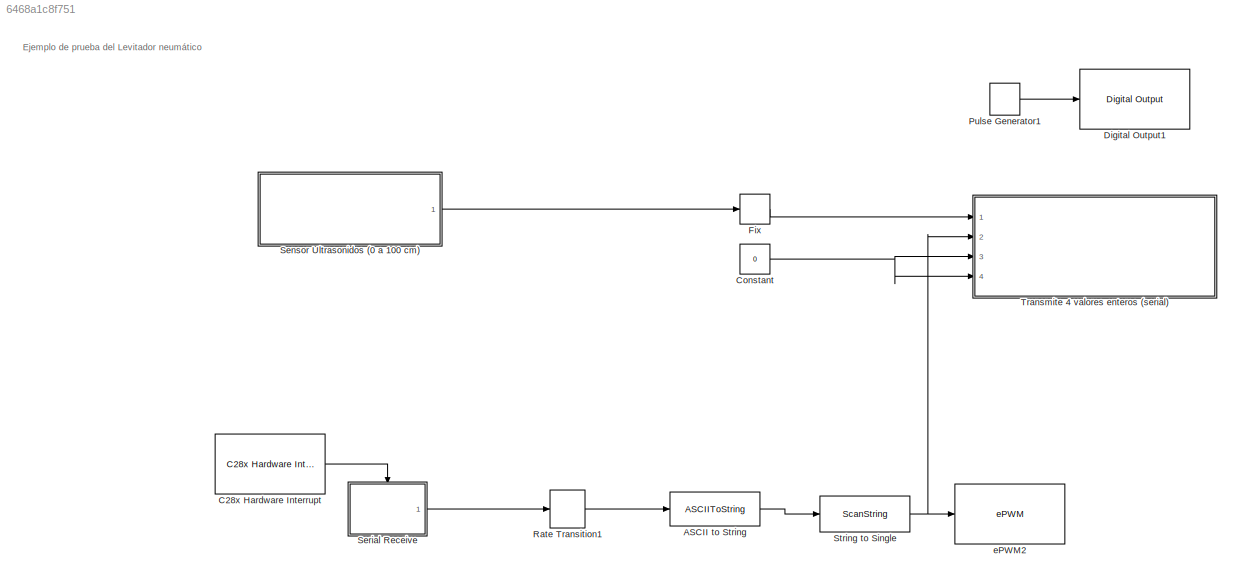
MODEL slx_6468a1c8f751
KIND model
CONFIG AbsTol = auto
CONFIG EnableMultiTasking = on
CONFIG FixedStep = 0.01
CONFIG MaxStep = auto
CONFIG MinStep = auto
CONFIG RelTol = 1e-3
CONFIG SampleTimeConstraint = Unconstrained
CONFIG Solver = FixedStepDiscrete
CONFIG SolverName = FixedStepDiscrete
CONFIG StartTime = 0.0
CONFIG StopTime = Inf
BLOCK [ASCIIToString] ASCII to String
BLOCK [Reference] C28x Hardware Interrupt  REF=c2000lib/Scheduling/C28x Hardware Interrupt
  Ports = [0, 1]
  SourceBlock = c2000lib/Scheduling/C28x Hardware Interrupt
  SourceProductBaseCode = TIC2000
  SourceProductName = Embedded Coder Support Package for Texas Instruments C2000 Processors
  SourceType = C28x Interrupt Block
BLOCK [Constant] Constant
  Value = 0
BLOCK [Reference] Digital Output1  REF=c2837xDlib/Digital Output
  Ports = [1]
  SourceBlock = c2837xDlib/Digital Output
  SourceProductBaseCode = TIC2000
  SourceProductName = Embedded Coder Support Package for Texas Instruments C2000 Processors
  SourceType = F2837x GPIO Digital Output
  UserDataPersistent = on
BLOCK [Rounding] Fix
  Operator = fix
BLOCK [DiscretePulseGenerator] Pulse Generator1
  Period = 6
  Ports = [0, 1]
  PulseWidth = 3
  SampleTime = -1
BLOCK [RateTransition] Rate Transition1
  AttributesFormatString = Ts = %<OutPortSampleTime>
  Integrity = off
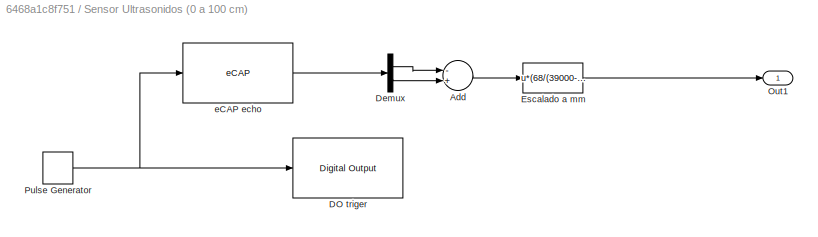
BLOCK [SubSystem] Sensor Ultrasonidos (0 a 100 cm) 
  Ports = [0, 1]
  RequestExecContextInheritance = off
BLOCK [Sum] Sensor Ultrasonidos (0 a 100 cm) /Add
  InputSameDT = off
  Inputs = -+
  OutDataTypeStr = double
  Ports = [2, 1]
  SaturateOnIntegerOverflow = off
BLOCK [Reference] Sensor Ultrasonidos (0 a 100 cm) /DO triger   REF=c2837xDlib/Digital Output
  Ports = [1]
  SourceBlock = c2837xDlib/Digital Output
  SourceProductBaseCode = TIC2000
  SourceProductName = Embedded Coder Support Package for Texas Instruments C2000 Processors
  SourceType = F2837x GPIO Digital Output
  UserDataPersistent = on
BLOCK [Demux] Sensor Ultrasonidos (0 a 100 cm) /Demux
  DisplayOption = bar
  Outputs = 2
  Ports = [1, 2]
BLOCK [Fcn] Sensor Ultrasonidos (0 a 100 cm) /Escalado a mm 
  Expr = u*(68/(39000-440000))+75
BLOCK [Outport] Sensor Ultrasonidos (0 a 100 cm) /Out1
  IconDisplay = Port number
BLOCK [DiscretePulseGenerator] Sensor Ultrasonidos (0 a 100 cm) /Pulse Generator
  Ports = [0, 1]
  SampleTime = -1
BLOCK [Reference] Sensor Ultrasonidos (0 a 100 cm) /eCAP echo   REF=c280xlib/eCAP
  Ports = [1, 1]
  SourceBlock = c280xlib/eCAP
  SourceProductBaseCode = TIC2000
  SourceProductName = Embedded Coder Support Package for Texas Instruments C2000 Processors
  SourceType = C28x eCAP
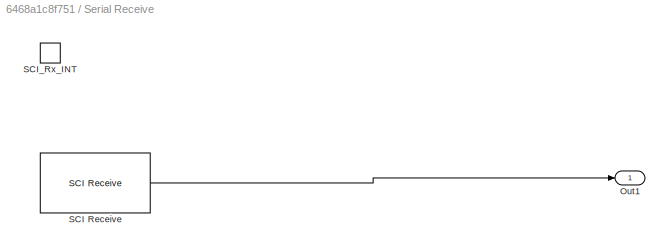
BLOCK [SubSystem] Serial Receive
  Ports = [0, 1, 0, 1]
  RequestExecContextInheritance = off
  SystemSampleTime = 1e-3
BLOCK [Outport] Serial Receive/Out1
  IconDisplay = Port number
  InitialOutput = [0]
  VectorParamsAs1DForOutWhenUnconnected = off
BLOCK [Reference] Serial Receive/SCI Receive  REF=c280xlib/SCI Receive
  Ports = [0, 1]
  SourceBlock = c280xlib/SCI Receive
  SourceProductBaseCode = TIC2000
  SourceProductName = Embedded Coder Support Package for Texas Instruments C2000 Processors
  SourceType = C28x SCI Receive
BLOCK [TriggerPort] Serial Receive/SCI_Rx_INT
  Ports = []
  StatesWhenEnabling = held
  TriggerType = function-call
  VariantControl = Variant
BLOCK [ScanString] String to Single
  Format = "%d"
  Ports = [1, 1]
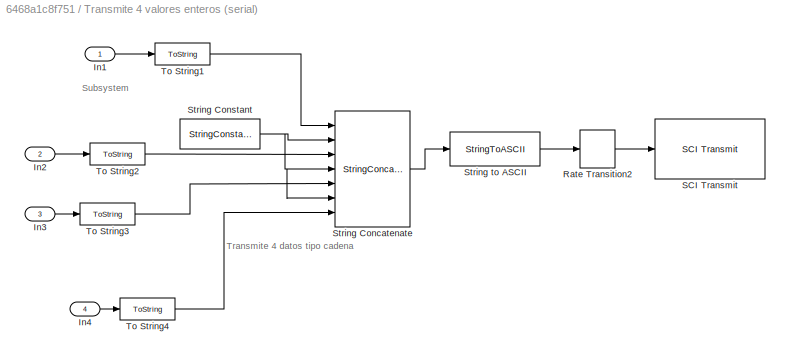
BLOCK [SubSystem] Transmite 4 valores enteros (serial) 
  Ports = [4]
  RequestExecContextInheritance = off
BLOCK [Inport] Transmite 4 valores enteros (serial) /In1
  IconDisplay = Port number
BLOCK [Inport] Transmite 4 valores enteros (serial) /In2
  IconDisplay = Port number
  Port = 2
BLOCK [Inport] Transmite 4 valores enteros (serial) /In3
  IconDisplay = Port number
  Port = 3
BLOCK [Inport] Transmite 4 valores enteros (serial) /In4 
  IconDisplay = Port number
  Port = 4
BLOCK [RateTransition] Transmite 4 valores enteros (serial) /Rate Transition2
  AttributesFormatString = Ts = %<OutPortSampleTime>
  Integrity = off
BLOCK [Reference] Transmite 4 valores enteros (serial) /SCI Transmit  REF=c280xlib/SCI Transmit
  Ports = [1]
  SourceBlock = c280xlib/SCI Transmit
  SourceProductBaseCode = TIC2000
  SourceProductName = Embedded Coder Support Package for Texas Instruments C2000 Processors
  SourceType = C28x SCI Transmit
BLOCK [StringConcatenate] Transmite 4 valores enteros (serial) /String Concatenate
  Inputs = 7
  Ports = [7, 1]
BLOCK [StringConstant] Transmite 4 valores enteros (serial) /String Constant
  String = ","
BLOCK [StringToASCII] Transmite 4 valores enteros (serial) /String to ASCII
  OutputVectorSize = 16
BLOCK [ToString] Transmite 4 valores enteros (serial) /To String1
BLOCK [ToString] Transmite 4 valores enteros (serial) /To String2
BLOCK [ToString] Transmite 4 valores enteros (serial) /To String3
BLOCK [ToString] Transmite 4 valores enteros (serial) /To String4
BLOCK [Reference] ePWM2   REF=c2802xlib/ePWM
  Ports = [1]
  SourceBlock = c2802xlib/ePWM
  SourceProductBaseCode = TIC2000
  SourceProductName = Embedded Coder Support Package for Texas Instruments C2000 Processors
  SourceType = C2802x/03x/05x/06x/M3x/37x/07x/004x/38x ePWM
  UserDataPersistent = on
ANNOTATION (root): Ejemplo de prueba del Levitador neumático
ANNOTATION Transmite 4 valores enteros (serial) : Subsystem
ANNOTATION Transmite 4 valores enteros (serial) : Transmite 4 datos tipo cadena
LINE ASCII to String:1 -> String to Single:1
LINE C28x Hardware Interrupt:1 -> Serial Receive:trigger
NET Constant:1 -> Transmite 4 valores enteros (serial) :3, Transmite 4 valores enteros (serial) :4
LINE Fix:1 -> Transmite 4 valores enteros (serial) :1
LINE Pulse Generator1:1 -> Digital Output1:1
LINE Rate Transition1:1 -> ASCII to String:1
LINE Sensor Ultrasonidos (0 a 100 cm) /Add:1 -> Sensor Ultrasonidos (0 a 100 cm) /Escalado a mm :1
LINE Sensor Ultrasonidos (0 a 100 cm) /Demux:1 -> Sensor Ultrasonidos (0 a 100 cm) /Add:1
LINE Sensor Ultrasonidos (0 a 100 cm) /Demux:2 -> Sensor Ultrasonidos (0 a 100 cm) /Add:2
LINE Sensor Ultrasonidos (0 a 100 cm) /Escalado a mm :1 -> Sensor Ultrasonidos (0 a 100 cm) /Out1:1
NET Sensor Ultrasonidos (0 a 100 cm) /Pulse Generator:1 -> Sensor Ultrasonidos (0 a 100 cm) /DO triger :1, Sensor Ultrasonidos (0 a 100 cm) /eCAP echo :1
LINE Sensor Ultrasonidos (0 a 100 cm) /eCAP echo :1 -> Sensor Ultrasonidos (0 a 100 cm) /Demux:1
LINE Sensor Ultrasonidos (0 a 100 cm) :1 -> Fix:1
LINE Serial Receive/SCI Receive:1 -> Serial Receive/Out1:1
LINE Serial Receive:1 -> Rate Transition1:1
NET String to Single:1 -> Transmite 4 valores enteros (serial) :2, ePWM2 :1
LINE Transmite 4 valores enteros (serial) /In1:1 -> Transmite 4 valores enteros (serial) /To String1:1
LINE Transmite 4 valores enteros (serial) /In2:1 -> Transmite 4 valores enteros (serial) /To String2:1
LINE Transmite 4 valores enteros (serial) /In3:1 -> Transmite 4 valores enteros (serial) /To String3:1
LINE Transmite 4 valores enteros (serial) /In4 :1 -> Transmite 4 valores enteros (serial) /To String4:1
LINE Transmite 4 valores enteros (serial) /Rate Transition2:1 -> Transmite 4 valores enteros (serial) /SCI Transmit:1
LINE Transmite 4 valores enteros (serial) /String Concatenate:1 -> Transmite 4 valores enteros (serial) /String to ASCII:1
NET Transmite 4 valores enteros (serial) /String Constant:1 -> Transmite 4 valores enteros (serial) /String Concatenate:2, Transmite 4 valores enteros (serial) /String Concatenate:4, Transmite 4 valores enteros (serial) /String Concatenate:6
LINE Transmite 4 valores enteros (serial) /String to ASCII:1 -> Transmite 4 valores enteros (serial) /Rate Transition2:1
LINE Transmite 4 valores enteros (serial) /To String1:1 -> Transmite 4 valores enteros (serial) /String Concatenate:1
LINE Transmite 4 valores enteros (serial) /To String2:1 -> Transmite 4 valores enteros (serial) /String Concatenate:3
LINE Transmite 4 valores enteros (serial) /To String3:1 -> Transmite 4 valores enteros (serial) /String Concatenate:5
LINE Transmite 4 valores enteros (serial) /To String4:1 -> Transmite 4 valores enteros (serial) /String Concatenate:7
note: NET lines group one-source signal fan-out (src -> all destinations, sorted); 1:1 wires keep LINE
